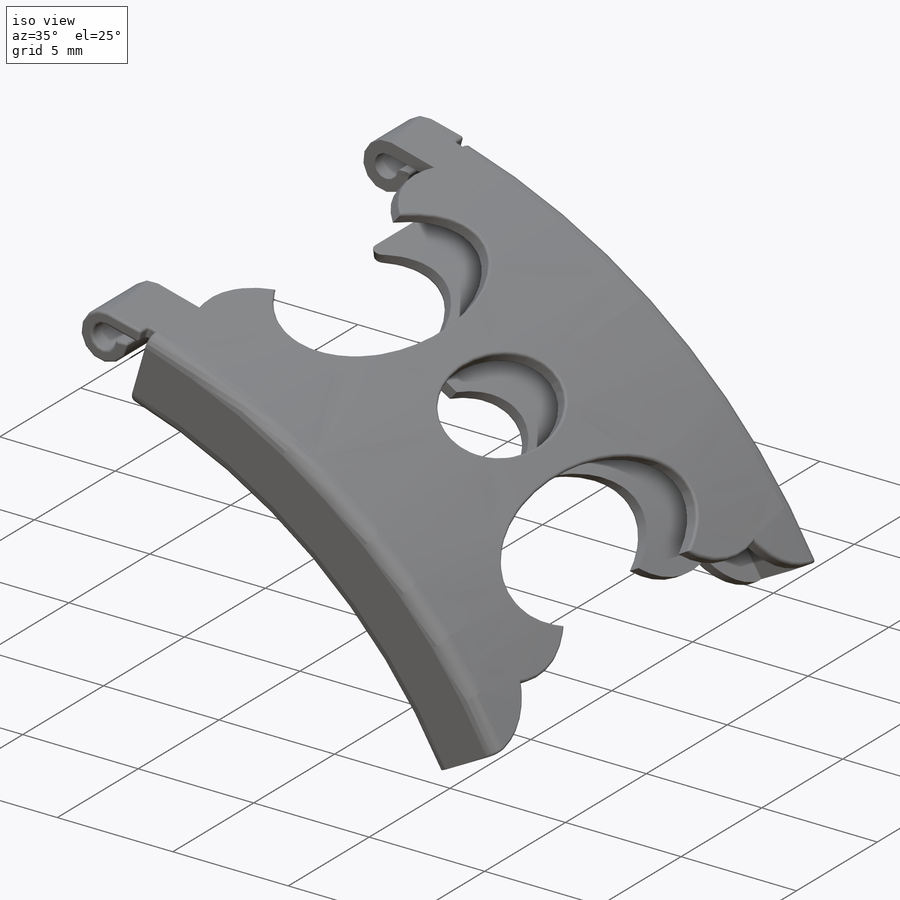
[diagram: iso view]
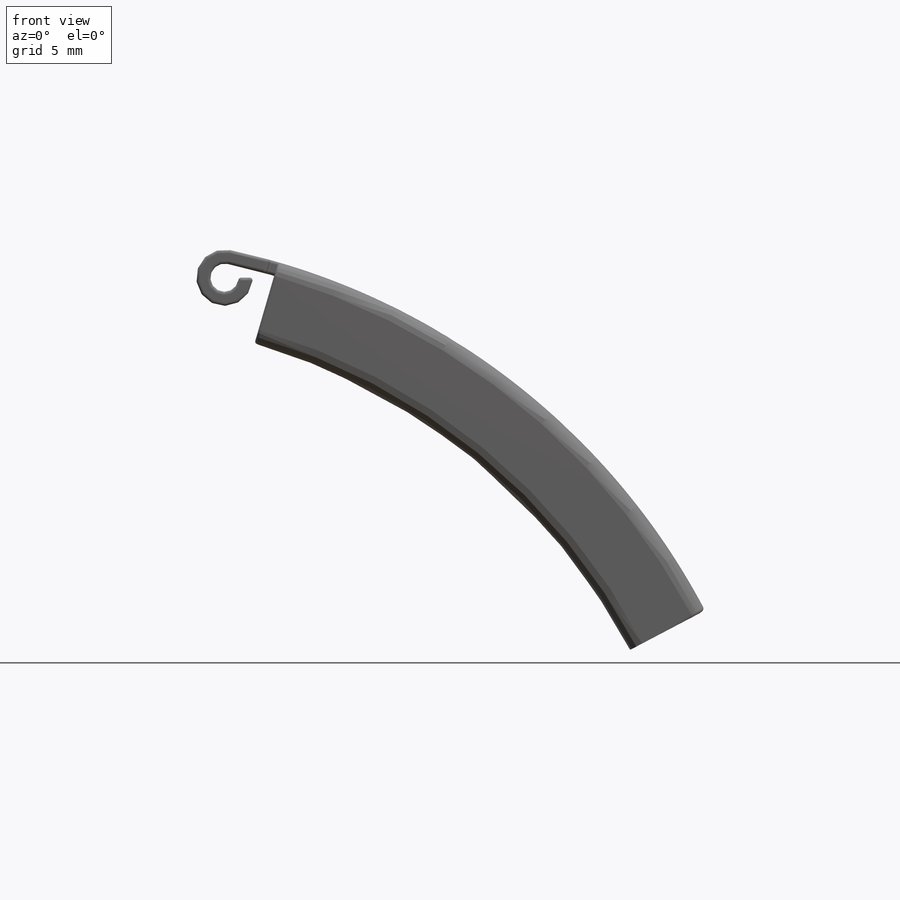
[diagram: front view]
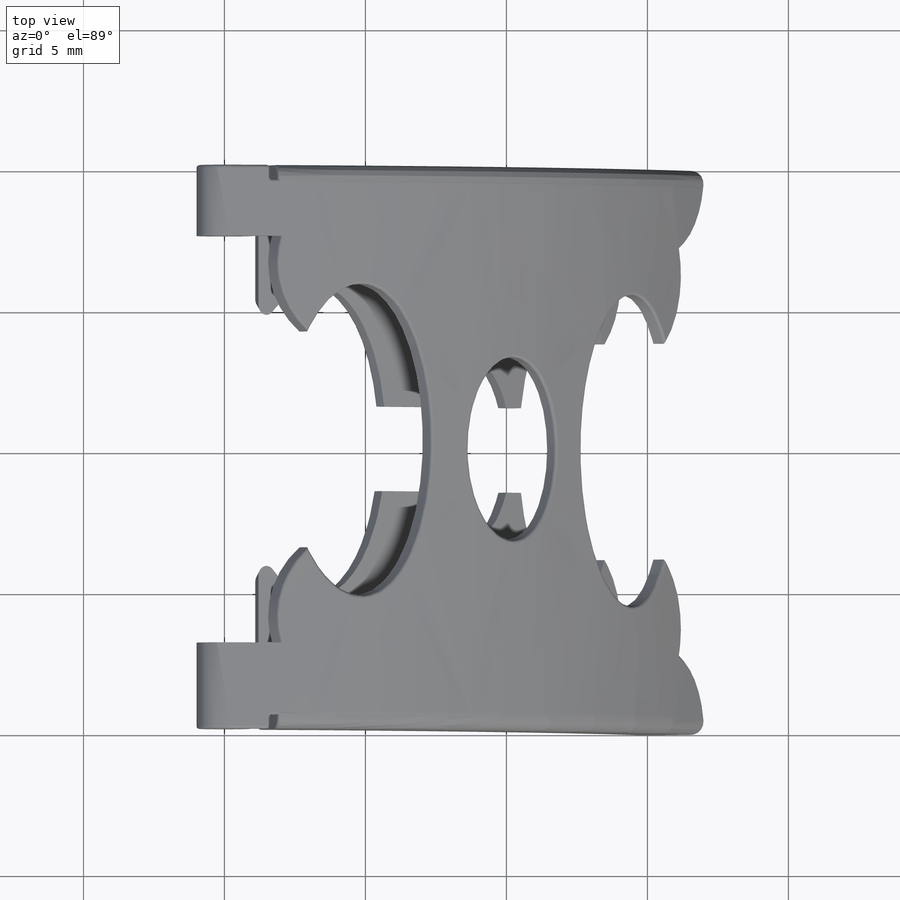
[diagram: top view]
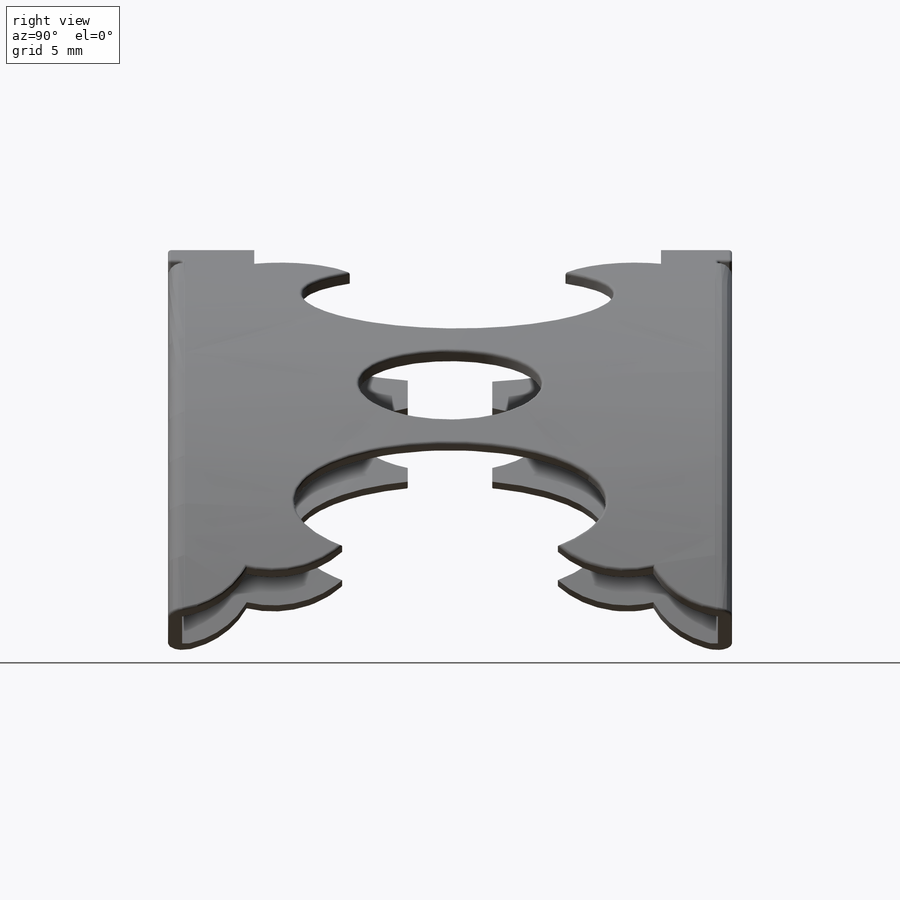
[diagram: right view]
SOLIDWORKS PART (.sldprt)
format: sldprt  version: not decoded by parser v0  size: 802,304 bytes
history: native  units: mm
features: sketch x9, plane x6, cut_extrude x6, fillet x6, extrude x3, mirror x2, material x1 (+8 scaffold rows collapsed)
feature tree (41):
  scaffold x8  (default folders/planes/origin — collapsed)
  material  "Matériau <non spécifié>"
  plane  "Face"
  plane  "Dessus"
  plane  "Droite"
  sketch  "Esquisse1"  dims[c1.D1=2.0mm c1.D3=1.0mm c1.D4=25.0mm c1.D5=~23.457025mm c2.D5=50.0deg c2.D6=~23.457025mm c2.D2=0.5mm]
  extrude  "Boss.-Extru.1"  Depth=20mm
  sketch  "Esquisse3"  dims[c1.D2=3.0mm c2.D2=46.0deg c2.D1=3.0mm c2.D3=0.0mm]
  extrude  "Boss.-Extru.2"  Depth=0.5mm
  sketch  "Esquisse4"  dims[D1=0.5mm]
  extrude  "Boss.-Extru.3"  Depth=8mm
  mirror  "Symétrie2"
  sketch  "Esquisse6"  dims[D1=0.3mm]
  cut_extrude  "Enlèv. mat.-Extru.1"  Depth=0.5mm
  mirror  "Symétrie4"
  fillet  "Congé2"  Radius=0.5mm
  plane  "Plan1"
  sketch  "Esquisse7"
  cut_extrude  "Enlèv. mat.-Extru.2"  [1 undecoded]
  plane  "Plan2"
  sketch  "Esquisse8"
  cut_extrude  "Enlèv. mat.-Extru.3"  [1 undecoded]
  plane  "Plan3"
  sketch  "Esquisse9"
  cut_extrude  "Enlèv. mat.-Extru.4"  [1 undecoded]
  sketch  "Esquisse10"  dims[D1=~2.774855mm]
  cut_extrude  "Enlèv. mat.-Extru.5"  [1 undecoded]
  sketch  "Esquisse12"
  cut_extrude  "Enlèv. mat.-Extru.6"  Depth=30.5mm
  fillet  "Congé3"  Radius=0.1mm
  fillet  "Congé4"  Radius=0.1mm
  fillet  "Congé5"  Radius=0.1mm
  fillet  "Congé6"  Radius=0.1mm
  fillet  "Congé7"  Radius=0.3mm
decode coverage: 16 of 26 modeling features carry decoded parameters
note: ~ marks probable driven/reference dimensions
note: 4 parameter values undecoded
summary: no parameter record found for 4 features
note: suppression state not decoded; provenance and decode notes live in map.json
